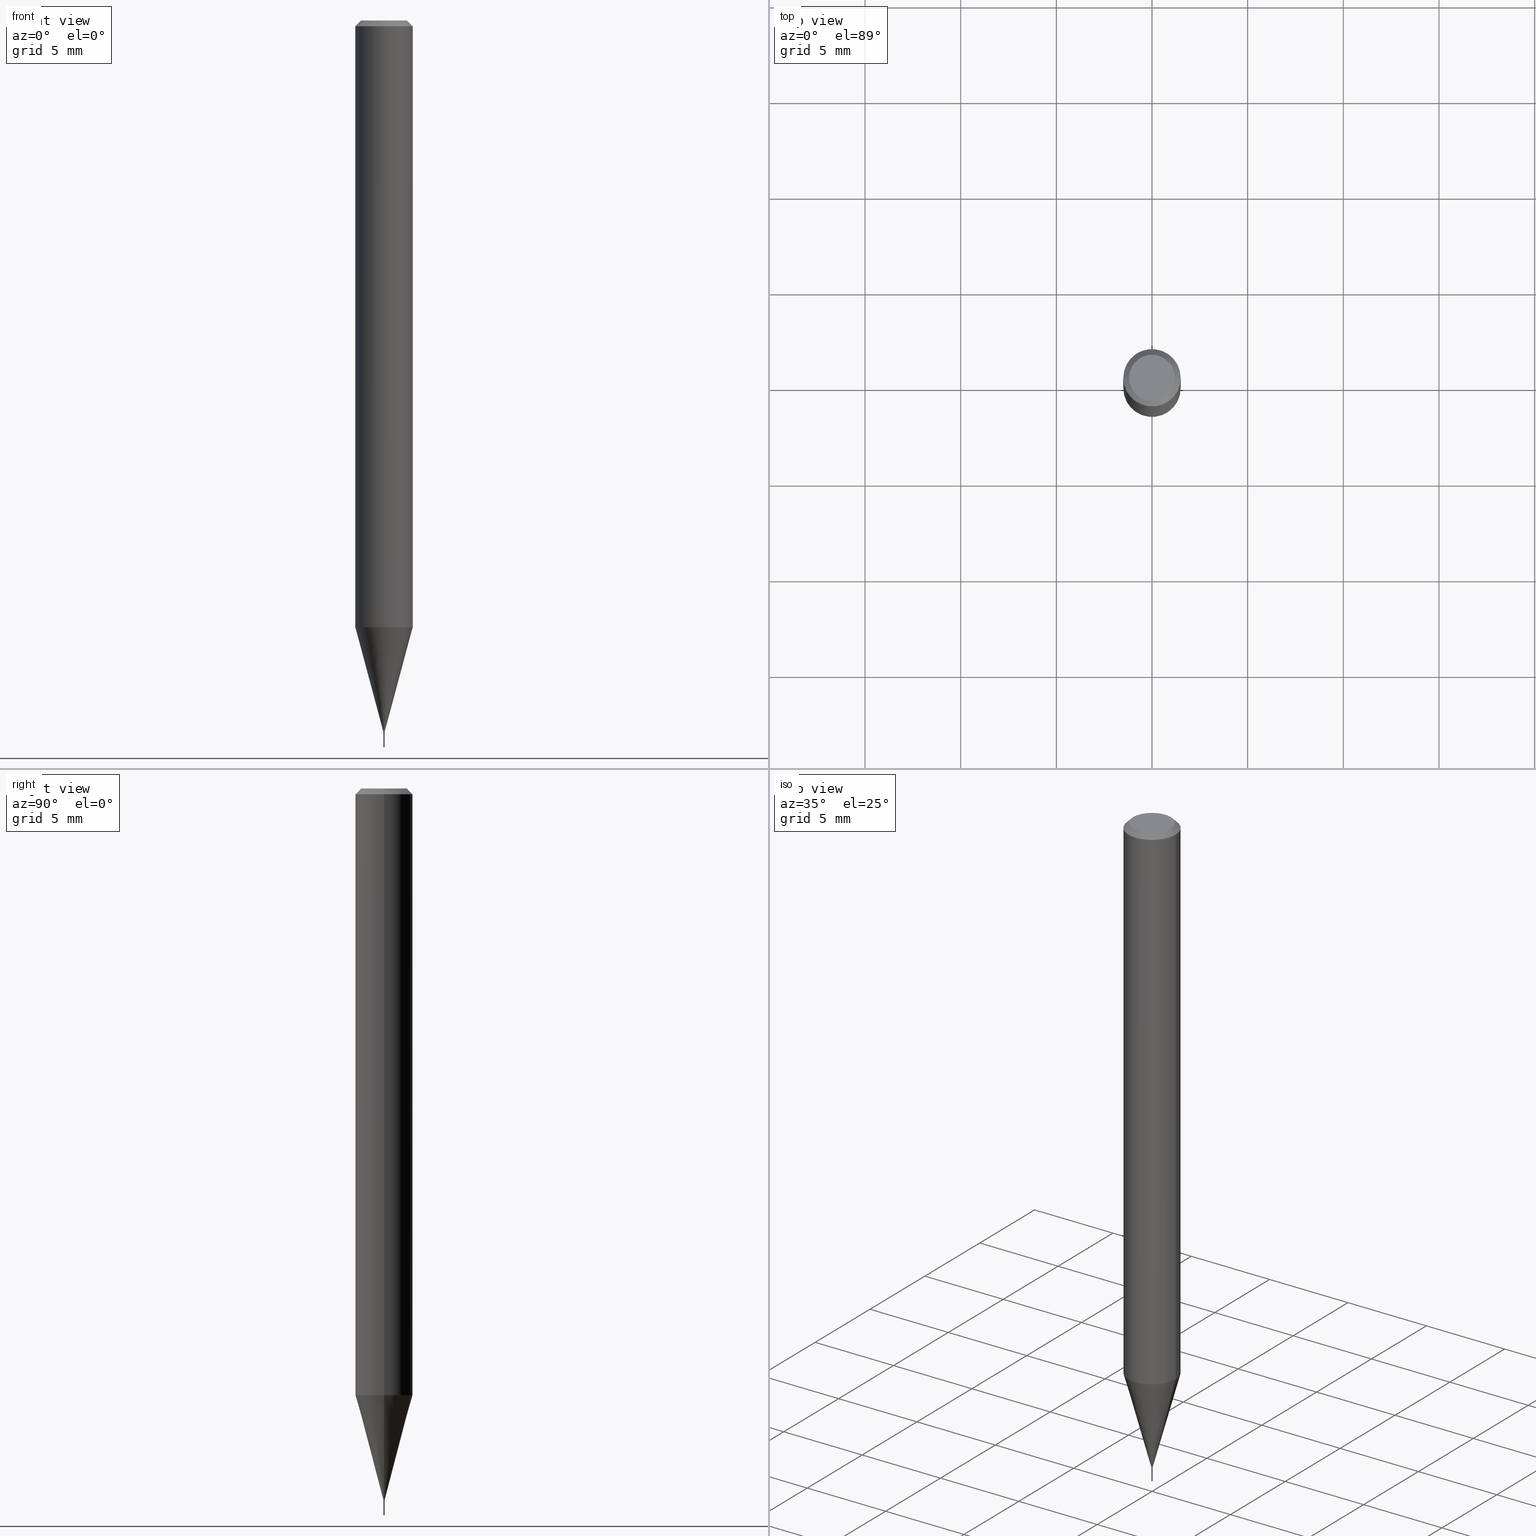
[diagram: canonical four-view strip — front | top / right | iso, engineering-drawing reading convention]
A machine part, canonical four-view strip (front | top / right | iso — engineering-drawing reading convention). The complete STEP part file that produces these views, byte-faithful:
ISO-10303-21;
HEADER;
FILE_DESCRIPTION (( 'STEP AP203' ),
    '1' );
FILE_NAME ('08230.STEP',
    '2024-04-24T13:51:48',
    ( '' ),
    ( '' ),
    'SwSTEP 2.0',
    'SolidWorks 2023',
    '' );
FILE_SCHEMA (( 'CONFIG_CONTROL_DESIGN' ));
ENDSEC;

DATA;
#1 = DATE_TIME_ROLE ( 'classification_date' ) ;
#2 = CALENDAR_DATE ( 2024, 24, 4 ) ;
#3 = EDGE_CURVE ( 'NONE', #83, #361, #436, .T. ) ;
#4 = DIRECTION ( 'NONE',  ( -6.982962677686266711E-15, -1.000000000000000000, 0.000000000000000000 ) ) ;
#5 = CARTESIAN_POINT ( 'NONE',  ( 3.580655426016277013E-29, -5.112226976334133788E-15, -1.464199999999999946 ) ) ;
#6 = CC_DESIGN_PERSON_AND_ORGANIZATION_ASSIGNMENT ( #111, #109, ( #314 ) ) ;
#7 = CIRCLE ( 'NONE', #338, 0.001199999999999999895 ) ;
#8 = VECTOR ( 'NONE', #375, 39.37007874015748143 ) ;
#9 = PLANE ( 'NONE',  #240 ) ;
#10 = DIMENSIONAL_EXPONENTS ( 1.000000000000000000, 0.000000000000000000, 0.000000000000000000, 0.000000000000000000, 0.000000000000000000, 0.000000000000000000, 0.000000000000000000 ) ;
#11 = DIRECTION ( 'NONE',  ( -2.445468806185136597E-29, 3.491481338843145583E-15, 1.000000000000000000 ) ) ;
#12 = APPROVAL ( #248, 'UNSPECIFIED' ) ;
#13 = PLANE ( 'NONE',  #431 ) ;
#14 = AXIS2_PLACEMENT_3D ( 'NONE', #287, #437, #25 ) ;
#15 = CIRCLE ( 'NONE', #340, 0.04724000000000000421 ) ;
#16 = DIRECTION ( 'NONE',  ( 1.000000000000000000, -6.982962677686194924E-15, 0.000000000000000000 ) ) ;
#17 = LINE ( 'NONE', #165, #288 ) ;
#18 = LINE ( 'NONE', #51, #38 ) ;
#19 = FACE_OUTER_BOUND ( 'NONE', #475, .T. ) ;
#20 = ORIENTED_EDGE ( 'NONE', *, *, #204, .T. ) ;
#21 = FACE_OUTER_BOUND ( 'NONE', #164, .T. ) ;
#22 = PERSON_AND_ORGANIZATION ( #309, #97 ) ;
#23 = AXIS2_PLACEMENT_3D ( 'NONE', #129, #399, #243 ) ;
#24 = DIRECTION ( 'NONE',  ( -2.445468806185136597E-29, 3.491481338843145583E-15, 1.000000000000000000 ) ) ;
#25 = DIRECTION ( 'NONE',  ( -6.982962677686263555E-15, -1.000000000000000000, 3.602282186708910399E-15 ) ) ;
#26 = ORIENTED_EDGE ( 'NONE', *, *, #269, .T. ) ;
#27 =( CONVERSION_BASED_UNIT ( 'INCH', #29 ) LENGTH_UNIT ( ) NAMED_UNIT ( #10 ) );
#28 = LINE ( 'NONE', #103, #8 ) ;
#29 = LENGTH_MEASURE_WITH_UNIT ( LENGTH_MEASURE( 0.02539999999999999897 ), #245 );
#30 = VERTEX_POINT ( 'NONE', #438 ) ;
#31 = CARTESIAN_POINT ( 'NONE',  ( 2.888098660104664204E-31, -4.123439461173780263E-17, -0.01181000000000007218 ) ) ;
#32 = LOCAL_TIME ( 9, 51, 48.00000000000000000, #37 ) ;
#33 = CALENDAR_DATE ( 2024, 24, 4 ) ;
#34 = CARTESIAN_POINT ( 'NONE',  ( 0.000000000000000000, 0.000000000000000000, 0.000000000000000000 ) ) ;
#35 = SHAPE_DEFINITION_REPRESENTATION ( #478, #347 ) ;
#36 = APPROVAL_STATUS ( 'not_yet_approved' ) ;
#37 = COORDINATED_UNIVERSAL_TIME_OFFSET ( 5, 0, .BEHIND. ) ;
#38 = VECTOR ( 'NONE', #202, 39.37007874015748143 ) ;
#39 = LINE ( 'NONE', #429, #382 ) ;
#40 = CARTESIAN_POINT ( 'NONE',  ( 0.001199999999999999895, -5.120257383413474282E-15, -1.464100000000000179 ) ) ;
#41 = AXIS2_PLACEMENT_3D ( 'NONE', #318, #158, #192 ) ;
#42 = EDGE_CURVE ( 'NONE', #256, #454, #189, .T. ) ;
#43 = VECTOR ( 'NONE', #125, 39.37007874015748143 ) ;
#44 = CARTESIAN_POINT ( 'NONE',  ( 0.001199999999999999895, -5.120606531547357794E-15, -1.464199999999999946 ) ) ;
#45 = EDGE_CURVE ( 'NONE', #121, #247, #50, .T. ) ;
#46 = DIRECTION ( 'NONE',  ( 6.090539988449630919E-15, 0.8571673007020930157, 0.5150380749100861300 ) ) ;
#47 = LINE ( 'NONE', #315, #219 ) ;
#48 = ORIENTED_EDGE ( 'NONE', *, *, #198, .T. ) ;
#49 = AXIS2_PLACEMENT_3D ( 'NONE', #203, #331, #206 ) ;
#50 = CIRCLE ( 'NONE', #387, 0.0006999999999999998845 ) ;
#51 = CARTESIAN_POINT ( 'NONE',  ( -0.001199999999999999895, 8.526512829121201484E-18, -5.902722108305886782E-32 ) ) ;
#52 = EDGE_CURVE ( 'NONE', #118, #335, #434, .T. ) ;
#53 = CARTESIAN_POINT ( 'NONE',  ( 0.001199999999999999895, -5.120606531547357794E-15, -1.464199999999999946 ) ) ;
#54 = DIRECTION ( 'NONE',  ( 1.000000000000000000, -6.982962677686657197E-15, 0.000000000000000000 ) ) ;
#55 = ORIENTED_EDGE ( 'NONE', *, *, #3, .F. ) ;
#56 = CC_DESIGN_SECURITY_CLASSIFICATION ( #277, ( #314 ) ) ;
#57 = ORIENTED_EDGE ( 'NONE', *, *, #348, .T. ) ;
#58 = DIRECTION ( 'NONE',  ( 1.000000000000000000, -6.982962677686266711E-15, 4.876176775795935793E-29 ) ) ;
#59 = AXIS2_PLACEMENT_3D ( 'NONE', #69, #457, #320 ) ;
#60 = DIRECTION ( 'NONE',  ( -2.445468806185136597E-29, 3.491481338843145583E-15, 1.000000000000000000 ) ) ;
#61 = APPLICATION_PROTOCOL_DEFINITION ( 'international standard', 'config_control_design', 1994, #257 ) ;
#62 = LINE ( 'NONE', #446, #241 ) ;
#63 = ADVANCED_FACE ( 'NONE', ( #395 ), #383, .T. ) ;
#64 = CARTESIAN_POINT ( 'NONE',  ( 2.888098660104664204E-31, -4.123439461173780263E-17, -0.01181000000000007218 ) ) ;
#65 = AXIS2_PLACEMENT_3D ( 'NONE', #330, #60, #54 ) ;
#66 = DATE_AND_TIME ( #222, #32 ) ;
#67 = CIRCLE ( 'NONE', #358, 0.0006999999999999998845 ) ;
#68 = EDGE_CURVE ( 'NONE', #98, #454, #18, .T. ) ;
#69 = CARTESIAN_POINT ( 'NONE',  ( 8.265746106709734507E-48, -1.180129479067563789E-33, -3.380025165646692144E-19 ) ) ;
#70 = ADVANCED_FACE ( 'NONE', ( #21 ), #201, .T. ) ;
#71 = CARTESIAN_POINT ( 'NONE',  ( 0.000000000000000000, 0.000000000000000000, 0.000000000000000000 ) ) ;
#72 = ORIENTED_EDGE ( 'NONE', *, *, #294, .T. ) ;
#73 = CARTESIAN_POINT ( 'NONE',  ( -8.379555213187701441E-18, -0.001200000000005113643, -1.464599999999999902 ) ) ;
#74 = VECTOR ( 'NONE', #349, 39.37007874015748143 ) ;
#75 = AXIS2_PLACEMENT_3D ( 'NONE', #64, #371, #336 ) ;
#76 = EDGE_LOOP ( 'NONE', ( #127, #258, #405, #102 ) ) ;
#77 = DIRECTION ( 'NONE',  ( 2.423361070706794113E-29, -3.523140874342291691E-15, -1.000000000000000000 ) ) ;
#78 = ORIENTED_EDGE ( 'NONE', *, *, #152, .T. ) ;
#79 = CYLINDRICAL_SURFACE ( 'NONE', #394, 0.001200000000000000329 ) ;
#80 = ORIENTED_EDGE ( 'NONE', *, *, #426, .F. ) ;
#81 = EDGE_CURVE ( 'NONE', #176, #141, #15, .T. ) ;
#82 = ORIENTED_EDGE ( 'NONE', *, *, #68, .T. ) ;
#83 = VERTEX_POINT ( 'NONE', #362 ) ;
#84 = LOCAL_TIME ( 9, 51, 48.00000000000000000, #410 ) ;
#85 = PRODUCT_RELATED_PRODUCT_CATEGORY ( 'detail', '', ( #285 ) ) ;
#86 = EDGE_LOOP ( 'NONE', ( #370, #57, #418 ) ) ;
#87 = DIRECTION ( 'NONE',  ( -6.982962677686265133E-15, -1.000000000000000000, 0.000000000000000000 ) ) ;
#88 = EDGE_LOOP ( 'NONE', ( #368, #275, #279, #313 ) ) ;
#89 = DIRECTION ( 'NONE',  ( -2.445468806185136597E-29, 3.491481338843145583E-15, 1.000000000000000000 ) ) ;
#90 = CARTESIAN_POINT ( 'NONE',  ( -0.001199999999999999895, -5.103525889438070980E-15, -1.464100000000000179 ) ) ;
#91 = EDGE_CURVE ( 'NONE', #420, #83, #254, .T. ) ;
#92 = DIRECTION ( 'NONE',  ( -2.445468806185136597E-29, 3.491481338843145583E-15, 1.000000000000000000 ) ) ;
#93 = APPLICATION_PROTOCOL_DEFINITION ( 'international standard', 'config_control_design', 1994, #311 ) ;
#94 = CC_DESIGN_DATE_AND_TIME_ASSIGNMENT ( #453, #487, ( #188 ) ) ;
#95 = ORIENTED_EDGE ( 'NONE', *, *, #134, .F. ) ;
#96 = DIRECTION ( 'NONE',  ( -2.423361070706794113E-29, 3.523140874342292085E-15, 1.000000000000000000 ) ) ;
#97 = ORGANIZATION ( 'UNSPECIFIED', 'UNSPECIFIED', '' ) ;
#98 = VERTEX_POINT ( 'NONE', #169 ) ;
#99 = DIRECTION ( 'NONE',  ( 1.000000000000000000, -6.982962677686657197E-15, 0.000000000000000000 ) ) ;
#100 = COORDINATED_UNIVERSAL_TIME_OFFSET ( 5, 0, .BEHIND. ) ;
#101 = DIRECTION ( 'NONE',  ( -2.438088387897960049E-29, 3.491481338843145188E-15, 1.000000000000000000 ) ) ;
#102 = ORIENTED_EDGE ( 'NONE', *, *, #52, .F. ) ;
#103 = CARTESIAN_POINT ( 'NONE',  ( -0.05904999999999999832, 3.711095515056362547E-16, -0.01181000000000007218 ) ) ;
#104 = PERSON_AND_ORGANIZATION ( #309, #97 ) ;
#105 = ORIENTED_EDGE ( 'NONE', *, *, #131, .F. ) ;
#106 = DIRECTION ( 'NONE',  ( -2.445468806185136597E-29, 3.491481338843145583E-15, 1.000000000000000000 ) ) ;
#107 = APPROVAL_DATE_TIME ( #190, #272 ) ;
#108 = VECTOR ( 'NONE', #421, 39.37007874015748143 ) ;
#109 = PERSON_AND_ORGANIZATION_ROLE ( 'creator' ) ;
#110 = MANIFOLD_SOLID_BREP ( 'Body-Move/Copy2[1]', #120 ) ;
#111 = PERSON_AND_ORGANIZATION ( #309, #97 ) ;
#112 = EDGE_LOOP ( 'NONE', ( #401, #159 ) ) ;
#113 = CC_DESIGN_APPROVAL ( #12, ( #188 ) ) ;
#114 = CONICAL_SURFACE ( 'NONE', #396, 0.001199999999999999895, 0.2617993877991571794 ) ;
#115 = EDGE_CURVE ( 'NONE', #445, #256, #327, .T. ) ;
#116 = DIRECTION ( 'NONE',  ( 1.000000000000000000, -6.982962677686266711E-15, 4.876176775795936353E-29 ) ) ;
#117 = CARTESIAN_POINT ( 'NONE',  ( 3.581633613538751591E-29, -5.113623568869670202E-15, -1.464599999999999902 ) ) ;
#118 = VERTEX_POINT ( 'NONE', #468 ) ;
#119 = CARTESIAN_POINT ( 'NONE',  ( 0.05904999999999999832, -4.535783407291118600E-16, -0.01181000000000007218 ) ) ;
#120 = CLOSED_SHELL ( 'NONE', ( #488, #461, #312, #264, #417 ) ) ;
#121 = VERTEX_POINT ( 'NONE', #128 ) ;
#122 = CARTESIAN_POINT ( 'NONE',  ( 0.0006999999999999998845, -5.118511642744051201E-15, -1.464599999999999902 ) ) ;
#123 = ADVANCED_FACE ( 'NONE', ( #205 ), #114, .T. ) ;
#124 = ORIENTED_EDGE ( 'NONE', *, *, #348, .F. ) ;
#125 = DIRECTION ( 'NONE',  ( -2.423361070706794113E-29, 3.523140874342291691E-15, 1.000000000000000000 ) ) ;
#126 = LINE ( 'NONE', #44, #440 ) ;
#127 = ORIENTED_EDGE ( 'NONE', *, *, #269, .F. ) ;
#128 = CARTESIAN_POINT ( 'NONE',  ( -0.0006999999999999998845, -5.106000542545238847E-15, -1.464599999999999902 ) ) ;
#129 = CARTESIAN_POINT ( 'NONE',  ( 3.656222164586328184E-29, -5.222062206483438629E-15, -1.495378967257166902 ) ) ;
#130 = AXIS2_PLACEMENT_3D ( 'NONE', #145, #302, #261 ) ;
#131 = EDGE_CURVE ( 'NONE', #98, #445, #378, .T. ) ;
#132 = DIRECTION ( 'NONE',  ( -2.445468806185136597E-29, 3.491481338843145583E-15, 1.000000000000000000 ) ) ;
#133 = DIRECTION ( 'NONE',  ( -2.445468806185136597E-29, 3.491481338843145583E-15, 1.000000000000000000 ) ) ;
#134 = EDGE_CURVE ( 'NONE', #30, #404, #221, .T. ) ;
#135 = DIRECTION ( 'NONE',  ( 1.000000000000000000, 0.000000000000000000, 0.000000000000000000 ) ) ;
#136 = EDGE_LOOP ( 'NONE', ( #95, #365, #304, #144 ) ) ;
#137 = CARTESIAN_POINT ( 'NONE',  ( -8.379555213187704523E-18, -0.001200000000005113860, -1.464599999999999902 ) ) ;
#138 =( NAMED_UNIT ( * ) SI_UNIT ( $, .STERADIAN. ) SOLID_ANGLE_UNIT ( ) );
#139 = PLANE ( 'NONE',  #469 ) ;
#140 = VECTOR ( 'NONE', #360, 39.37007874015748143 ) ;
#141 = VERTEX_POINT ( 'NONE', #444 ) ;
#142 = AXIS2_PLACEMENT_3D ( 'NONE', #471, #24, #99 ) ;
#143 = CARTESIAN_POINT ( 'NONE',  ( 3.656222164586328184E-29, -5.222062206483438629E-15, -1.495378967257166902 ) ) ;
#144 = ORIENTED_EDGE ( 'NONE', *, *, #400, .F. ) ;
#145 = CARTESIAN_POINT ( 'NONE',  ( 0.000000000000000000, 0.000000000000000000, 0.000000000000000000 ) ) ;
#146 = ADVANCED_FACE ( 'NONE', ( #481 ), #455, .T. ) ;
#147 = CYLINDRICAL_SURFACE ( 'NONE', #155, 0.001199999999999999895 ) ;
#148 = DIRECTION ( 'NONE',  ( -2.445468806185136597E-29, 3.491481338843145583E-15, 1.000000000000000000 ) ) ;
#149 = CC_DESIGN_APPROVAL ( #230, ( #314 ) ) ;
#150 = AXIS2_PLACEMENT_3D ( 'NONE', #377, #96, #4 ) ;
#151 = EDGE_CURVE ( 'NONE', #30, #83, #183, .T. ) ;
#152 = EDGE_CURVE ( 'NONE', #141, #283, #28, .T. ) ;
#153 = AXIS2_PLACEMENT_3D ( 'NONE', #71, #232, #116 ) ;
#154 = FACE_OUTER_BOUND ( 'NONE', #112, .T. ) ;
#155 = AXIS2_PLACEMENT_3D ( 'NONE', #34, #148, #305 ) ;
#156 = ORIENTED_EDGE ( 'NONE', *, *, #223, .F. ) ;
#157 = DIRECTION ( 'NONE',  ( 0.2588190451025281780, 1.565188264969567536E-15, 0.9659258262890662028 ) ) ;
#158 = DIRECTION ( 'NONE',  ( -2.423361070706794113E-29, 3.523140874342292085E-15, 1.000000000000000000 ) ) ;
#159 = ORIENTED_EDGE ( 'NONE', *, *, #400, .T. ) ;
#160 = DIRECTION ( 'NONE',  ( 6.982962677686265922E-15, 1.000000000000000000, -3.523140874342291691E-15 ) ) ;
#161 = AXIS2_PLACEMENT_3D ( 'NONE', #228, #323, #391 ) ;
#162 = AXIS2_PLACEMENT_3D ( 'NONE', #406, #210, #300 ) ;
#163 = ORIENTED_EDGE ( 'NONE', *, *, #152, .F. ) ;
#164 = EDGE_LOOP ( 'NONE', ( #72, #439, #262, #80 ) ) ;
#165 = CARTESIAN_POINT ( 'NONE',  ( -0.05905000000000007465, 4.195754854663396902E-16, -2.904631170795525395E-30 ) ) ;
#166 = DIRECTION ( 'NONE',  ( -2.445468806185136877E-29, 3.491481338843145188E-15, 1.000000000000000000 ) ) ;
#167 = FACE_OUTER_BOUND ( 'NONE', #430, .T. ) ;
#168 = ADVANCED_FACE ( 'NONE', ( #259 ), #147, .F. ) ;
#169 = CARTESIAN_POINT ( 'NONE',  ( -0.001199999999999999895, -5.103525889438070980E-15, -1.464199999999999946 ) ) ;
#170 = PERSON_AND_ORGANIZATION_ROLE ( 'design_owner' ) ;
#171 = APPROVAL_PERSON_ORGANIZATION ( #308, #230, #187 ) ;
#172 = EDGE_CURVE ( 'NONE', #121, #454, #62, .T. ) ;
#173 = CARTESIAN_POINT ( 'NONE',  ( 3.052680815776794134E-29, -4.358419160682700425E-15, -1.248300860782146415 ) ) ;
#174 = ORIENTED_EDGE ( 'NONE', *, *, #359, .T. ) ;
#175 = PERSON_AND_ORGANIZATION ( #309, #97 ) ;
#176 = VERTEX_POINT ( 'NONE', #185 ) ;
#177 = DIRECTION ( 'NONE',  ( -2.423361070706794113E-29, 3.523140874342292085E-15, 1.000000000000000000 ) ) ;
#178 = DIRECTION ( 'NONE',  ( -2.445468806185136597E-29, 3.491481338843145583E-15, 1.000000000000000000 ) ) ;
#179 = ADVANCED_FACE ( 'NONE', ( #184 ), #209, .T. ) ;
#180 = FACE_OUTER_BOUND ( 'NONE', #88, .T. ) ;
#181 = LOCAL_TIME ( 9, 51, 48.00000000000000000, #100 ) ;
#182 = ORIENTED_EDGE ( 'NONE', *, *, #432, .F. ) ;
#183 = CIRCLE ( 'NONE', #415, 0.001200000000000000762 ) ;
#184 = FACE_OUTER_BOUND ( 'NONE', #197, .T. ) ;
#185 = CARTESIAN_POINT ( 'NONE',  ( 0.04724000000000000421, -3.852183633974369345E-16, -3.380025165621689721E-19 ) ) ;
#186 = PERSON_AND_ORGANIZATION_ROLE ( 'design_supplier' ) ;
#187 = APPROVAL_ROLE ( '' ) ;
#188 = PRODUCT_DEFINITION ( 'UNKNOWN', '', #314, #344 ) ;
#189 = CIRCLE ( 'NONE', #142, 0.001199999999999999895 ) ;
#190 = DATE_AND_TIME ( #225, #84 ) ;
#191 = UNCERTAINTY_MEASURE_WITH_UNIT (LENGTH_MEASURE( 1.000000000000000082E-05 ), #27, 'distance_accuracy_value', 'NONE');
#192 = DIRECTION ( 'NONE',  ( -6.982962677686266711E-15, -1.000000000000000000, 0.000000000000000000 ) ) ;
#193 = APPROVAL_PERSON_ORGANIZATION ( #441, #12, #397 ) ;
#194 = CONICAL_SURFACE ( 'NONE', #14, 65.52281426576239198, 1.029744258676613677 ) ;
#195 = CARTESIAN_POINT ( 'NONE',  ( 0.05905000000000007465, -4.123439461173745750E-16, 2.879382386107504074E-30 ) ) ;
#196 = DIRECTION ( 'NONE',  ( 1.000000000000000000, -6.982962677686262766E-15, 0.000000000000000000 ) ) ;
#197 = EDGE_LOOP ( 'NONE', ( #268, #390, #207, #341 ) ) ;
#198 = EDGE_CURVE ( 'NONE', #454, #256, #310, .T. ) ;
#199 = DIRECTION ( 'NONE',  ( 1.000000000000000000, -6.982962677686265922E-15, 4.876176775795935793E-29 ) ) ;
#200 = CARTESIAN_POINT ( 'NONE',  ( 3.052680815776794134E-29, -4.358419160682700425E-15, -1.248300860782146415 ) ) ;
#201 = CONICAL_SURFACE ( 'NONE', #299, 0.0006999999999999998845, 0.7853981633975493093 ) ;
#202 = DIRECTION ( 'NONE',  ( -2.445468806185136877E-29, 3.491481338843145188E-15, 1.000000000000000000 ) ) ;
#203 = CARTESIAN_POINT ( 'NONE',  ( 2.888098660104664204E-31, -4.123439461173780263E-17, -0.01181000000000007218 ) ) ;
#204 = EDGE_CURVE ( 'NONE', #283, #398, #388, .T. ) ;
#205 = FACE_OUTER_BOUND ( 'NONE', #435, .T. ) ;
#206 = DIRECTION ( 'NONE',  ( -1.000000000000000000, 6.982962677686266711E-15, 0.000000000000000000 ) ) ;
#207 = ORIENTED_EDGE ( 'NONE', *, *, #426, .T. ) ;
#208 = CARTESIAN_POINT ( 'NONE',  ( 0.000000000000000000, 0.000000000000000000, 0.000000000000000000 ) ) ;
#209 = CONICAL_SURFACE ( 'NONE', #289, 0.0006999999999999998845, 0.7853981633975493093 ) ;
#210 = DIRECTION ( 'NONE',  ( -2.445468806185136597E-29, 3.491481338843145583E-15, 1.000000000000000000 ) ) ;
#211 = CALENDAR_DATE ( 2024, 24, 4 ) ;
#212 = ORIENTED_EDGE ( 'NONE', *, *, #376, .F. ) ;
#213 = EDGE_CURVE ( 'NONE', #361, #404, #367, .T. ) ;
#214 = ORIENTED_EDGE ( 'NONE', *, *, #52, .T. ) ;
#215 = CARTESIAN_POINT ( 'NONE',  ( 0.000000000000000000, 0.000000000000000000, 0.000000000000000000 ) ) ;
#216 = EDGE_LOOP ( 'NONE', ( #460, #174, #411, #163 ) ) ;
#217 = DIRECTION ( 'NONE',  ( -2.423361070706794113E-29, 3.523140874342291691E-15, 1.000000000000000000 ) ) ;
#218 = CARTESIAN_POINT ( 'NONE',  ( 0.0006999999999999998845, -5.118511642744051201E-15, -1.464599999999999902 ) ) ;
#219 = VECTOR ( 'NONE', #357, 39.37007874015748854 ) ;
#220 = VECTOR ( 'NONE', #217, 39.37007874015748143 ) ;
#221 = LINE ( 'NONE', #342, #220 ) ;
#222 = CALENDAR_DATE ( 2024, 24, 4 ) ;
#223 = EDGE_CURVE ( 'NONE', #141, #176, #253, .T. ) ;
#224 = APPROVAL_DATE_TIME ( #346, #230 ) ;
#225 = CALENDAR_DATE ( 2024, 24, 4 ) ;
#226 = CIRCLE ( 'NONE', #23, 0.001200000000000000762 ) ;
#227 = EDGE_CURVE ( 'NONE', #398, #283, #407, .T. ) ;
#228 = CARTESIAN_POINT ( 'NONE',  ( -9.174994668229280735E-28, 1.334817311291118676E-13, 37.87397874015748300 ) ) ;
#229 = CARTESIAN_POINT ( 'NONE',  ( 2.888098660104664204E-31, -4.123439461173780263E-17, -0.01181000000000007218 ) ) ;
#230 = APPROVAL ( #381, 'UNSPECIFIED' ) ;
#231 = CARTESIAN_POINT ( 'NONE',  ( 3.581633613538751591E-29, -5.113623568869670202E-15, -1.464599999999999902 ) ) ;
#232 = DIRECTION ( 'NONE',  ( -2.445468806185136597E-29, 3.491481338843145583E-15, 1.000000000000000000 ) ) ;
#233 = ORIENTED_EDGE ( 'NONE', *, *, #294, .F. ) ;
#234 = DIRECTION ( 'NONE',  ( -2.445468806185136597E-29, 3.491481338843145583E-15, 1.000000000000000000 ) ) ;
#235 = CC_DESIGN_DATE_AND_TIME_ASSIGNMENT ( #66, #1, ( #277 ) ) ;
#236 = CARTESIAN_POINT ( 'NONE',  ( 4.132873053354867254E-48, -5.900647395337818946E-34, -1.690012582823346072E-19 ) ) ;
#237 = ADVANCED_FACE ( 'NONE', ( #180 ), #339, .T. ) ;
#238 = ORIENTED_EDGE ( 'NONE', *, *, #115, .F. ) ;
#239 = CYLINDRICAL_SURFACE ( 'NONE', #298, 0.001199999999999999895 ) ;
#240 = AXIS2_PLACEMENT_3D ( 'NONE', #236, #317, #354 ) ;
#241 = VECTOR ( 'NONE', #379, 39.37007874015748143 ) ;
#242 = CARTESIAN_POINT ( 'NONE',  ( 3.625590497884433758E-29, -5.270971062103502676E-15, -1.496099999999999985 ) ) ;
#243 = DIRECTION ( 'NONE',  ( -6.982962677686265133E-15, -1.000000000000000000, 0.000000000000000000 ) ) ;
#244 = DIRECTION ( 'NONE',  ( 1.000000000000000000, -6.982962677686194924E-15, 0.000000000000000000 ) ) ;
#245 =( LENGTH_UNIT ( ) NAMED_UNIT ( * ) SI_UNIT ( $, .METRE. ) );
#246 = ORIENTED_EDGE ( 'NONE', *, *, #91, .T. ) ;
#247 = VERTEX_POINT ( 'NONE', #218 ) ;
#248 = APPROVAL_STATUS ( 'not_yet_approved' ) ;
#249 = LOCAL_TIME ( 9, 51, 48.00000000000000000, #255 ) ;
#250 = DIRECTION ( 'NONE',  ( -2.445468806185136597E-29, 3.491481338843145583E-15, 1.000000000000000000 ) ) ;
#251 = AXIS2_PLACEMENT_3D ( 'NONE', #173, #326, #433 ) ;
#252 = ADVANCED_FACE ( 'NONE', ( #479 ), #139, .F. ) ;
#253 = CIRCLE ( 'NONE', #59, 0.04724000000000000421 ) ;
#254 = LINE ( 'NONE', #242, #424 ) ;
#255 = COORDINATED_UNIVERSAL_TIME_OFFSET ( 5, 0, .BEHIND. ) ;
#256 = VERTEX_POINT ( 'NONE', #40 ) ;
#257 = APPLICATION_CONTEXT ( 'configuration controlled 3d designs of mechanical parts and assemblies' ) ;
#258 = ORIENTED_EDGE ( 'NONE', *, *, #131, .T. ) ;
#259 = FACE_OUTER_BOUND ( 'NONE', #295, .T. ) ;
#260 = COORDINATED_UNIVERSAL_TIME_OFFSET ( 5, 0, .BEHIND. ) ;
#261 = DIRECTION ( 'NONE',  ( 1.000000000000000000, -6.982962677686266711E-15, 4.876176775795936353E-29 ) ) ;
#262 = ORIENTED_EDGE ( 'NONE', *, *, #42, .F. ) ;
#263 = DIRECTION ( 'NONE',  ( 2.445468806185136597E-29, -3.491481338843145583E-15, -1.000000000000000000 ) ) ;
#264 = ADVANCED_FACE ( 'NONE', ( #462 ), #79, .T. ) ;
#265 = CIRCLE ( 'NONE', #41, 0.001199999999999999895 ) ;
#266 = SECURITY_CLASSIFICATION_LEVEL ( 'unclassified' ) ;
#267 = AXIS2_PLACEMENT_3D ( 'NONE', #229, #250, #373 ) ;
#268 = ORIENTED_EDGE ( 'NONE', *, *, #172, .F. ) ;
#269 = EDGE_CURVE ( 'NONE', #98, #118, #47, .T. ) ;
#270 =( GEOMETRIC_REPRESENTATION_CONTEXT ( 3 ) GLOBAL_UNCERTAINTY_ASSIGNED_CONTEXT ( ( #191 ) ) GLOBAL_UNIT_ASSIGNED_CONTEXT ( ( #27, #477, #138 ) ) REPRESENTATION_CONTEXT ( 'NONE', 'WORKASPACE' ) );
#271 = CLOSED_SHELL ( 'NONE', ( #70, #146, #237, #123, #168, #483, #63, #303, #456, #324, #252, #179 ) ) ;
#272 = APPROVAL ( #36, 'UNSPECIFIED' ) ;
#273 = ORIENTED_EDGE ( 'NONE', *, *, #45, .F. ) ;
#274 = DIRECTION ( 'NONE',  ( -2.423361070706794113E-29, 3.523140874342292085E-15, 1.000000000000000000 ) ) ;
#275 = ORIENTED_EDGE ( 'NONE', *, *, #432, .T. ) ;
#276 = CARTESIAN_POINT ( 'NONE',  ( 0.05905000000000015098, -4.770763106800076134E-15, -1.248300860782146415 ) ) ;
#277 = SECURITY_CLASSIFICATION ( '', '', #266 ) ;
#278 = CARTESIAN_POINT ( 'NONE',  ( 3.581633613538751591E-29, -5.113623568869670202E-15, -1.464599999999999902 ) ) ;
#279 = ORIENTED_EDGE ( 'NONE', *, *, #227, .F. ) ;
#280 = MANIFOLD_SOLID_BREP ( 'Body-Move/Copy2[2]', #271 ) ;
#281 = DIRECTION ( 'NONE',  ( 1.000000000000000000, -6.982962677686657197E-15, 0.000000000000000000 ) ) ;
#282 = EDGE_LOOP ( 'NONE', ( #182, #214, #448, #333 ) ) ;
#283 = VERTEX_POINT ( 'NONE', #427 ) ;
#284 = DIRECTION ( 'NONE',  ( -6.982962677686265133E-15, -1.000000000000000000, 0.000000000000000000 ) ) ;
#285 = PRODUCT ( '08230', '08230', '', ( #293 ) ) ;
#286 = ORIENTED_EDGE ( 'NONE', *, *, #68, .F. ) ;
#287 = CARTESIAN_POINT ( 'NONE',  ( -9.174994668229280735E-28, 1.334817311291118676E-13, 37.87397874015748300 ) ) ;
#288 = VECTOR ( 'NONE', #291, 39.37007874015748143 ) ;
#289 = AXIS2_PLACEMENT_3D ( 'NONE', #345, #489, #307 ) ;
#290 = ORIENTED_EDGE ( 'NONE', *, *, #359, .F. ) ;
#291 = DIRECTION ( 'NONE',  ( -2.445468806185136877E-29, 3.491481338843145188E-15, 1.000000000000000000 ) ) ;
#292 = CARTESIAN_POINT ( 'NONE',  ( 3.580655426016277013E-29, -5.112226976334133788E-15, -1.464199999999999946 ) ) ;
#293 = MECHANICAL_CONTEXT ( 'NONE', #257, 'mechanical' ) ;
#294 = EDGE_CURVE ( 'NONE', #247, #121, #67, .T. ) ;
#295 = EDGE_LOOP ( 'NONE', ( #105, #82, #48, #238 ) ) ;
#296 = CARTESIAN_POINT ( 'NONE',  ( 3.581633613538751591E-29, -5.113623568869670202E-15, -1.464599999999999902 ) ) ;
#297 = DATE_AND_TIME ( #211, #249 ) ;
#298 = AXIS2_PLACEMENT_3D ( 'NONE', #215, #178, #58 ) ;
#299 = AXIS2_PLACEMENT_3D ( 'NONE', #296, #89, #16 ) ;
#300 = DIRECTION ( 'NONE',  ( 1.000000000000000000, -6.982962677686657197E-15, 0.000000000000000000 ) ) ;
#301 = DIRECTION ( 'NONE',  ( 0.000000000000000000, 0.000000000000000000, 1.000000000000000000 ) ) ;
#302 = DIRECTION ( 'NONE',  ( -2.445468806185136597E-29, 3.491481338843145583E-15, 1.000000000000000000 ) ) ;
#303 = ADVANCED_FACE ( 'NONE', ( #458 ), #355, .T. ) ;
#304 = ORIENTED_EDGE ( 'NONE', *, *, #3, .T. ) ;
#305 = DIRECTION ( 'NONE',  ( 1.000000000000000000, -6.982962677686266711E-15, 4.876176775795935793E-29 ) ) ;
#306 = CC_DESIGN_PERSON_AND_ORGANIZATION_ASSIGNMENT ( #175, #334, ( #188 ) ) ;
#307 = DIRECTION ( 'NONE',  ( 1.000000000000000000, -6.982962677686194924E-15, 0.000000000000000000 ) ) ;
#308 = PERSON_AND_ORGANIZATION ( #309, #97 ) ;
#309 = PERSON ( 'UNSPECIFIED', 'UNSPECIFIED', 'UNSPECIFIED', ('UNSPECIFIED'), ('UNSPECIFIED'), ('UNSPECIFIED') ) ;
#310 = CIRCLE ( 'NONE', #328, 0.001199999999999999895 ) ;
#311 = APPLICATION_CONTEXT ( 'configuration controlled 3d designs of mechanical parts and assemblies' ) ;
#312 = ADVANCED_FACE ( 'NONE', ( #386 ), #414, .T. ) ;
#313 = ORIENTED_EDGE ( 'NONE', *, *, #316, .F. ) ;
#314 = PRODUCT_DEFINITION_FORMATION_WITH_SPECIFIED_SOURCE ( 'ANY', '', #285, .NOT_KNOWN. ) ;
#315 = CARTESIAN_POINT ( 'NONE',  ( -0.001199999999999999895, -5.103700463505012736E-15, -1.464199999999999946 ) ) ;
#316 = EDGE_CURVE ( 'NONE', #335, #398, #419, .T. ) ;
#317 = DIRECTION ( 'NONE',  ( 2.438088387897960049E-29, -3.491481338843145188E-15, -1.000000000000000000 ) ) ;
#318 = CARTESIAN_POINT ( 'NONE',  ( 3.581633613538751591E-29, -5.113623568869670202E-15, -1.464599999999999902 ) ) ;
#319 = CC_DESIGN_APPROVAL ( #272, ( #277 ) ) ;
#320 = DIRECTION ( 'NONE',  ( 1.000000000000000000, -6.982962677686266711E-15, 4.876185090822587894E-29 ) ) ;
#321 = CARTESIAN_POINT ( 'NONE',  ( 3.625590497884433758E-29, -5.270971062103502676E-15, -1.496099999999999985 ) ) ;
#322 = CARTESIAN_POINT ( 'NONE',  ( 3.581633613538751591E-29, -5.113623568869670202E-15, -1.464599999999999902 ) ) ;
#323 = DIRECTION ( 'NONE',  ( -2.423361070706794113E-29, 3.523140874342292085E-15, 1.000000000000000000 ) ) ;
#324 = ADVANCED_FACE ( 'NONE', ( #466 ), #9, .F. ) ;
#325 = ORIENTED_EDGE ( 'NONE', *, *, #134, .T. ) ;
#326 = DIRECTION ( 'NONE',  ( -2.445468806185136597E-29, 3.491481338843145583E-15, 1.000000000000000000 ) ) ;
#327 = LINE ( 'NONE', #428, #353 ) ;
#328 = AXIS2_PLACEMENT_3D ( 'NONE', #449, #106, #412 ) ;
#329 = ORIENTED_EDGE ( 'NONE', *, *, #450, .T. ) ;
#330 = CARTESIAN_POINT ( 'NONE',  ( 3.580655426016277013E-29, -5.112226976334133788E-15, -1.464199999999999946 ) ) ;
#331 = DIRECTION ( 'NONE',  ( 2.445468806185136597E-29, -3.491481338843145583E-15, -1.000000000000000000 ) ) ;
#332 = ORIENTED_EDGE ( 'NONE', *, *, #223, .T. ) ;
#333 = ORIENTED_EDGE ( 'NONE', *, *, #204, .F. ) ;
#334 = PERSON_AND_ORGANIZATION_ROLE ( 'creator' ) ;
#335 = VERTEX_POINT ( 'NONE', #276 ) ;
#336 = DIRECTION ( 'NONE',  ( 1.000000000000000000, -6.982962677686266711E-15, 0.000000000000000000 ) ) ;
#337 = DIRECTION ( 'NONE',  ( -2.423361070706794113E-29, 3.523140874342292085E-15, 1.000000000000000000 ) ) ;
#338 = AXIS2_PLACEMENT_3D ( 'NONE', #5, #11, #281 ) ;
#339 = CYLINDRICAL_SURFACE ( 'NONE', #130, 0.05905000000000007465 ) ;
#340 = AXIS2_PLACEMENT_3D ( 'NONE', #473, #133, #465 ) ;
#341 = ORIENTED_EDGE ( 'NONE', *, *, #198, .F. ) ;
#342 = CARTESIAN_POINT ( 'NONE',  ( 8.526512829157019158E-18, 0.001199999999994886581, -1.464599999999999902 ) ) ;
#343 = CC_DESIGN_PERSON_AND_ORGANIZATION_ASSIGNMENT ( #447, #186, ( #314 ) ) ;
#344 = DESIGN_CONTEXT ( 'detailed design', #311, 'design' ) ;
#345 = CARTESIAN_POINT ( 'NONE',  ( 3.581633613538751591E-29, -5.113623568869670202E-15, -1.464599999999999902 ) ) ;
#346 = DATE_AND_TIME ( #33, #451 ) ;
#347 = ADVANCED_BREP_SHAPE_REPRESENTATION ( '08230', ( #110, #280, #403 ), #270 ) ;
#348 = EDGE_CURVE ( 'NONE', #420, #30, #39, .T. ) ;
#349 = DIRECTION ( 'NONE',  ( -2.445468806185136877E-29, 3.491481338843145188E-15, 1.000000000000000000 ) ) ;
#350 = EDGE_CURVE ( 'NONE', #445, #335, #126, .T. ) ;
#351 = ORIENTED_EDGE ( 'NONE', *, *, #151, .F. ) ;
#352 = APPROVAL_PERSON_ORGANIZATION ( #104, #272, #413 ) ;
#353 = VECTOR ( 'NONE', #166, 39.37007874015748143 ) ;
#354 = DIRECTION ( 'NONE',  ( -1.000000000000000000, 6.982962677686265922E-15, -4.876176775795935793E-29 ) ) ;
#355 = CYLINDRICAL_SURFACE ( 'NONE', #153, 0.05905000000000007465 ) ;
#356 = ORIENTED_EDGE ( 'NONE', *, *, #380, .F. ) ;
#357 = DIRECTION ( 'NONE',  ( -0.2588190451025281780, 5.211531920934592063E-15, 0.9659258262890662028 ) ) ;
#358 = AXIS2_PLACEMENT_3D ( 'NONE', #231, #234, #384 ) ;
#359 = EDGE_CURVE ( 'NONE', #176, #398, #392, .T. ) ;
#360 = DIRECTION ( 'NONE',  ( 0.7071067811866189601, -2.468850131083005295E-15, 0.7071067811864760744 ) ) ;
#361 = VERTEX_POINT ( 'NONE', #73 ) ;
#362 = CARTESIAN_POINT ( 'NONE',  ( -8.379555213186960343E-18, -0.001200000000005222714, -1.495378967257166902 ) ) ;
#363 = FACE_OUTER_BOUND ( 'NONE', #86, .T. ) ;
#364 = DIRECTION ( 'NONE',  ( 1.000000000000000000, -6.982962677686657197E-15, 0.000000000000000000 ) ) ;
#365 = ORIENTED_EDGE ( 'NONE', *, *, #151, .T. ) ;
#366 = AXIS2_PLACEMENT_3D ( 'NONE', #200, #389, #196 ) ;
#367 = CIRCLE ( 'NONE', #150, 0.001199999999999999895 ) ;
#368 = ORIENTED_EDGE ( 'NONE', *, *, #376, .T. ) ;
#369 = APPROVAL_DATE_TIME ( #297, #12 ) ;
#370 = ORIENTED_EDGE ( 'NONE', *, *, #91, .F. ) ;
#371 = DIRECTION ( 'NONE',  ( -2.445468806185136597E-29, 3.491481338843145583E-15, 1.000000000000000000 ) ) ;
#372 = CARTESIAN_POINT ( 'NONE',  ( 3.581633613538751591E-29, -5.113623568869670202E-15, -1.464599999999999902 ) ) ;
#373 = DIRECTION ( 'NONE',  ( 1.000000000000000000, -6.982962677686266711E-15, 0.000000000000000000 ) ) ;
#374 = ORIENTED_EDGE ( 'NONE', *, *, #380, .T. ) ;
#375 = DIRECTION ( 'NONE',  ( -0.7071067811865453523, 2.468850131082234184E-15, -0.7071067811865496822 ) ) ;
#376 = EDGE_CURVE ( 'NONE', #335, #118, #423, .T. ) ;
#377 = CARTESIAN_POINT ( 'NONE',  ( 3.581633613538751591E-29, -5.113623568869670202E-15, -1.464599999999999902 ) ) ;
#378 = CIRCLE ( 'NONE', #162, 0.001199999999999999895 ) ;
#379 = DIRECTION ( 'NONE',  ( -0.7071067811866189601, 7.493145998870612907E-15, 0.7071067811864760744 ) ) ;
#380 = EDGE_CURVE ( 'NONE', #445, #98, #7, .T. ) ;
#381 = APPROVAL_STATUS ( 'not_yet_approved' ) ;
#382 = VECTOR ( 'NONE', #46, 39.37007874015748854 ) ;
#383 = CONICAL_SURFACE ( 'NONE', #65, 0.001199999999999999895, 0.2617993877991571794 ) ;
#384 = DIRECTION ( 'NONE',  ( 1.000000000000000000, -6.982962677686194924E-15, 0.000000000000000000 ) ) ;
#385 = EDGE_LOOP ( 'NONE', ( #329, #325, #408, #55 ) ) ;
#386 = FACE_OUTER_BOUND ( 'NONE', #484, .T. ) ;
#387 = AXIS2_PLACEMENT_3D ( 'NONE', #322, #132, #244 ) ;
#388 = CIRCLE ( 'NONE', #75, 0.05904999999999999832 ) ;
#389 = DIRECTION ( 'NONE',  ( -2.445468806185136597E-29, 3.491481338843145583E-15, 1.000000000000000000 ) ) ;
#390 = ORIENTED_EDGE ( 'NONE', *, *, #45, .T. ) ;
#391 = DIRECTION ( 'NONE',  ( -6.982962677686263555E-15, -1.000000000000000000, 3.602282186708910399E-15 ) ) ;
#392 = LINE ( 'NONE', #459, #108 ) ;
#393 = CC_DESIGN_PERSON_AND_ORGANIZATION_ASSIGNMENT ( #416, #490, ( #277 ) ) ;
#394 = AXIS2_PLACEMENT_3D ( 'NONE', #117, #274, #284 ) ;
#395 = FACE_OUTER_BOUND ( 'NONE', #76, .T. ) ;
#396 = AXIS2_PLACEMENT_3D ( 'NONE', #292, #92, #364 ) ;
#397 = APPROVAL_ROLE ( '' ) ;
#398 = VERTEX_POINT ( 'NONE', #119 ) ;
#399 = DIRECTION ( 'NONE',  ( -2.423361070706794113E-29, 3.523140874342292085E-15, 1.000000000000000000 ) ) ;
#400 = EDGE_CURVE ( 'NONE', #404, #361, #265, .T. ) ;
#401 = ORIENTED_EDGE ( 'NONE', *, *, #213, .T. ) ;
#402 = DIRECTION ( 'NONE',  ( -5.985567269335796129E-15, -0.8571673007020894630, 0.5150380749100921252 ) ) ;
#403 = AXIS2_PLACEMENT_3D ( 'NONE', #208, #301, #135 ) ;
#404 = VERTEX_POINT ( 'NONE', #425 ) ;
#405 = ORIENTED_EDGE ( 'NONE', *, *, #350, .T. ) ;
#406 = CARTESIAN_POINT ( 'NONE',  ( 3.580655426016277013E-29, -5.112226976334133788E-15, -1.464199999999999946 ) ) ;
#407 = CIRCLE ( 'NONE', #267, 0.05904999999999999832 ) ;
#408 = ORIENTED_EDGE ( 'NONE', *, *, #213, .F. ) ;
#409 = DIRECTION ( 'NONE',  ( -1.000000000000000000, 6.982962677686266711E-15, 0.000000000000000000 ) ) ;
#410 = COORDINATED_UNIVERSAL_TIME_OFFSET ( 5, 0, .BEHIND. ) ;
#411 = ORIENTED_EDGE ( 'NONE', *, *, #227, .T. ) ;
#412 = DIRECTION ( 'NONE',  ( 1.000000000000000000, -6.982962677686657197E-15, 0.000000000000000000 ) ) ;
#413 = APPROVAL_ROLE ( '' ) ;
#414 = CONICAL_SURFACE ( 'NONE', #161, 65.52281426576239198, 1.029744258676613677 ) ;
#415 = AXIS2_PLACEMENT_3D ( 'NONE', #143, #177, #486 ) ;
#416 = PERSON_AND_ORGANIZATION ( #309, #97 ) ;
#417 = ADVANCED_FACE ( 'NONE', ( #154 ), #13, .F. ) ;
#418 = ORIENTED_EDGE ( 'NONE', *, *, #450, .F. ) ;
#419 = LINE ( 'NONE', #195, #74 ) ;
#420 = VERTEX_POINT ( 'NONE', #321 ) ;
#421 = DIRECTION ( 'NONE',  ( 0.7071067811865453523, -7.319954787623248157E-15, -0.7071067811865496822 ) ) ;
#422 = ORIENTED_EDGE ( 'NONE', *, *, #115, .T. ) ;
#423 = CIRCLE ( 'NONE', #366, 0.05905000000000015098 ) ;
#424 = VECTOR ( 'NONE', #402, 39.37007874015748143 ) ;
#425 = CARTESIAN_POINT ( 'NONE',  ( 8.526512829157777204E-18, 0.001199999999994886364, -1.464599999999999902 ) ) ;
#426 = EDGE_CURVE ( 'NONE', #247, #256, #463, .T. ) ;
#427 = CARTESIAN_POINT ( 'NONE',  ( -0.05904999999999999832, -1.780251292180878401E-15, -0.01181000000000007218 ) ) ;
#428 = CARTESIAN_POINT ( 'NONE',  ( 0.001199999999999999895, -8.379555213223519116E-18, 5.851412130955122461E-32 ) ) ;
#429 = CARTESIAN_POINT ( 'NONE',  ( 3.690916327680688762E-29, -5.178233950719401517E-15, -1.496099999999999985 ) ) ;
#430 = EDGE_LOOP ( 'NONE', ( #290, #156, #78, #20 ) ) ;
#431 = AXIS2_PLACEMENT_3D ( 'NONE', #278, #77, #160 ) ;
#432 = EDGE_CURVE ( 'NONE', #118, #283, #17, .T. ) ;
#433 = DIRECTION ( 'NONE',  ( 1.000000000000000000, -6.982962677686262766E-15, 0.000000000000000000 ) ) ;
#434 = CIRCLE ( 'NONE', #251, 0.05905000000000015098 ) ;
#435 = EDGE_LOOP ( 'NONE', ( #374, #26, #212, #476 ) ) ;
#436 = LINE ( 'NONE', #137, #43 ) ;
#437 = DIRECTION ( 'NONE',  ( -2.423361070706794113E-29, 3.523140874342292085E-15, 1.000000000000000000 ) ) ;
#438 = CARTESIAN_POINT ( 'NONE',  ( 8.526512829157766419E-18, 0.001199999999994778377, -1.495378967257166902 ) ) ;
#439 = ORIENTED_EDGE ( 'NONE', *, *, #172, .T. ) ;
#440 = VECTOR ( 'NONE', #157, 39.37007874015748854 ) ;
#441 = PERSON_AND_ORGANIZATION ( #309, #97 ) ;
#442 = AXIS2_PLACEMENT_3D ( 'NONE', #31, #263, #409 ) ;
#443 = CARTESIAN_POINT ( 'NONE',  ( 3.581633613538751591E-29, -5.113623568869670202E-15, -1.464599999999999902 ) ) ;
#444 = CARTESIAN_POINT ( 'NONE',  ( -0.04724000000000000421, 3.504923541997677355E-16, -3.380025165670481712E-19 ) ) ;
#445 = VERTEX_POINT ( 'NONE', #53 ) ;
#446 = CARTESIAN_POINT ( 'NONE',  ( -0.0006999999999999998845, -5.108649769719350049E-15, -1.464599999999999902 ) ) ;
#447 = PERSON_AND_ORGANIZATION ( #309, #97 ) ;
#448 = ORIENTED_EDGE ( 'NONE', *, *, #316, .T. ) ;
#449 = CARTESIAN_POINT ( 'NONE',  ( 3.580410879135658789E-29, -5.111877828200250276E-15, -1.464100000000000179 ) ) ;
#450 = EDGE_CURVE ( 'NONE', #83, #30, #226, .T. ) ;
#451 = LOCAL_TIME ( 9, 51, 48.00000000000000000, #260 ) ;
#452 = CC_DESIGN_PERSON_AND_ORGANIZATION_ASSIGNMENT ( #22, #170, ( #285 ) ) ;
#453 = DATE_AND_TIME ( #2, #181 ) ;
#454 = VERTEX_POINT ( 'NONE', #90 ) ;
#455 = CONICAL_SURFACE ( 'NONE', #442, 0.05904999999999999832, 0.7853981633974452814 ) ;
#456 = ADVANCED_FACE ( 'NONE', ( #167 ), #470, .T. ) ;
#457 = DIRECTION ( 'NONE',  ( -2.445468806185136597E-29, 3.491481338843145583E-15, 1.000000000000000000 ) ) ;
#458 = FACE_OUTER_BOUND ( 'NONE', #282, .T. ) ;
#459 = CARTESIAN_POINT ( 'NONE',  ( 0.05904999999999999832, -4.463468013801466955E-16, -0.01181000000000007218 ) ) ;
#460 = ORIENTED_EDGE ( 'NONE', *, *, #81, .F. ) ;
#461 = ADVANCED_FACE ( 'NONE', ( #363 ), #194, .T. ) ;
#462 = FACE_OUTER_BOUND ( 'NONE', #136, .T. ) ;
#463 = LINE ( 'NONE', #122, #140 ) ;
#464 = EDGE_LOOP ( 'NONE', ( #233, #273 ) ) ;
#465 = DIRECTION ( 'NONE',  ( 1.000000000000000000, -6.982962677686266711E-15, 4.876185090822587894E-29 ) ) ;
#466 = FACE_OUTER_BOUND ( 'NONE', #467, .T. ) ;
#467 = EDGE_LOOP ( 'NONE', ( #332, #485 ) ) ;
#468 = CARTESIAN_POINT ( 'NONE',  ( -0.05905000000000015098, -3.938843675216360143E-15, -1.248300860782146415 ) ) ;
#469 = AXIS2_PLACEMENT_3D ( 'NONE', #443, #101, #199 ) ;
#470 = CONICAL_SURFACE ( 'NONE', #49, 0.05904999999999999832, 0.7853981633974452814 ) ;
#471 = CARTESIAN_POINT ( 'NONE',  ( 3.580410879135658789E-29, -5.111877828200250276E-15, -1.464100000000000179 ) ) ;
#472 = FACE_OUTER_BOUND ( 'NONE', #385, .T. ) ;
#473 = CARTESIAN_POINT ( 'NONE',  ( 8.265746106709734507E-48, -1.180129479067563789E-33, -3.380025165646692144E-19 ) ) ;
#474 = CYLINDRICAL_SURFACE ( 'NONE', #482, 0.001200000000000000329 ) ;
#475 = EDGE_LOOP ( 'NONE', ( #286, #356, #422, #480 ) ) ;
#476 = ORIENTED_EDGE ( 'NONE', *, *, #350, .F. ) ;
#477 =( NAMED_UNIT ( * ) PLANE_ANGLE_UNIT ( ) SI_UNIT ( $, .RADIAN. ) );
#478 = PRODUCT_DEFINITION_SHAPE ( 'NONE', 'NONE',  #188 ) ;
#479 = FACE_OUTER_BOUND ( 'NONE', #464, .T. ) ;
#480 = ORIENTED_EDGE ( 'NONE', *, *, #42, .T. ) ;
#481 = FACE_OUTER_BOUND ( 'NONE', #216, .T. ) ;
#482 = AXIS2_PLACEMENT_3D ( 'NONE', #372, #337, #87 ) ;
#483 = ADVANCED_FACE ( 'NONE', ( #19 ), #239, .F. ) ;
#484 = EDGE_LOOP ( 'NONE', ( #124, #246, #351 ) ) ;
#485 = ORIENTED_EDGE ( 'NONE', *, *, #81, .T. ) ;
#486 = DIRECTION ( 'NONE',  ( -6.982962677686265133E-15, -1.000000000000000000, 0.000000000000000000 ) ) ;
#487 = DATE_TIME_ROLE ( 'creation_date' ) ;
#488 = ADVANCED_FACE ( 'NONE', ( #472 ), #474, .T. ) ;
#489 = DIRECTION ( 'NONE',  ( -2.445468806185136597E-29, 3.491481338843145583E-15, 1.000000000000000000 ) ) ;
#490 = PERSON_AND_ORGANIZATION_ROLE ( 'classification_officer' ) ;
ENDSEC;
END-ISO-10303-21;
